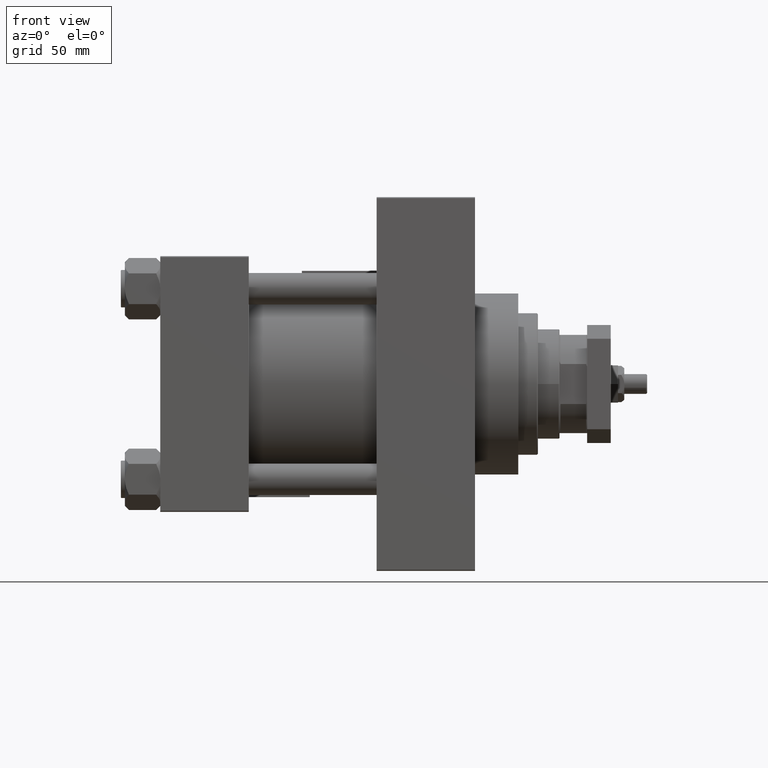
[diagram: clean part render]
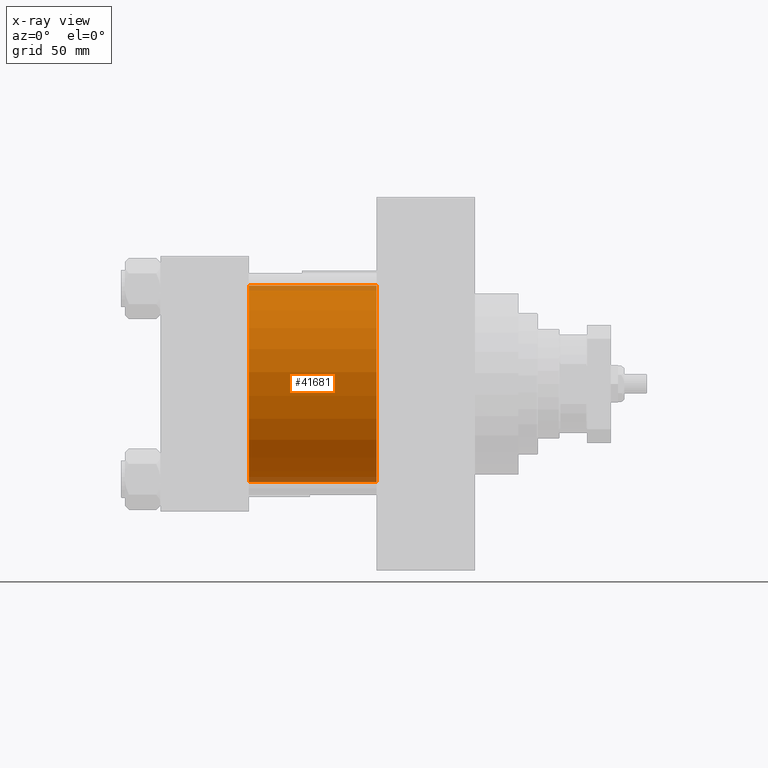
[diagram: x-ray — body ghosted, one internal face saturated and labeled with its STEP entity id]
A machine part, front view, then the same camera in x-ray: the body is ghosted and one INTERNAL B-rep face — a face not visible from any outside direction — is saturated and labeled: STEP entity #41681.
In plain terms, the highlighted cylindrical surface (partial cylindrical patch) has radius 50 mm, axis along (-1, -0, -0).
Its self-contained STEP definition (entity closure, byte-faithful):
#1074 = CARTESIAN_POINT ( 'NONE',  ( 45.00000000000000000, -2.602085213965210642E-15, 50.00000000000000000 ) ) ;
#1263 = ORIENTED_EDGE ( 'NONE', *, *, #14110, .T. ) ;
#3635 = DIRECTION ( 'NONE',  ( 1.000000000000000000, 0.000000000000000000, 0.000000000000000000 ) ) ;
#4664 = FACE_OUTER_BOUND ( 'NONE', #42427, .T. ) ;
#5217 = VERTEX_POINT ( 'NONE', #17005 ) ;
#5256 = ORIENTED_EDGE ( 'NONE', *, *, #15180, .F. ) ;
#5449 = VERTEX_POINT ( 'NONE', #1074 ) ;
#6221 = DIRECTION ( 'NONE',  ( -1.000000000000000000, -0.000000000000000000, -0.000000000000000000 ) ) ;
#6423 = VECTOR ( 'NONE', #32489, 1000.000000000000000 ) ;
#9815 = VERTEX_POINT ( 'NONE', #25591 ) ;
#12006 = VECTOR ( 'NONE', #6221, 1000.000000000000000 ) ;
#13772 = DIRECTION ( 'NONE',  ( 0.000000000000000000, 0.000000000000000000, -1.000000000000000000 ) ) ;
#14110 = EDGE_CURVE ( 'NONE', #9815, #24066, #19762, .T. ) ;
#15180 = EDGE_CURVE ( 'NONE', #5449, #24066, #19371, .T. ) ;
#17005 = CARTESIAN_POINT ( 'NONE',  ( 110.0000000000000000, -2.602085213965210642E-15, 50.00000000000000000 ) ) ;
#18123 = AXIS2_PLACEMENT_3D ( 'NONE', #27983, #3635, #32318 ) ;
#19371 = CIRCLE ( 'NONE', #39313, 50.00000000000000000 ) ;
#19762 = LINE ( 'NONE', #36305, #6423 ) ;
#21691 = CYLINDRICAL_SURFACE ( 'NONE', #46876, 50.00000000000000000 ) ;
#24066 = VERTEX_POINT ( 'NONE', #38141 ) ;
#25591 = CARTESIAN_POINT ( 'NONE',  ( 110.0000000000000000, 3.521148781771555838E-15, -50.00000000000000000 ) ) ;
#26776 = CIRCLE ( 'NONE', #18123, 50.00000000000000000 ) ;
#27983 = CARTESIAN_POINT ( 'NONE',  ( 110.0000000000000000, -2.602085213965210642E-15, 0.000000000000000000 ) ) ;
#28464 = EDGE_CURVE ( 'NONE', #5217, #5449, #34922, .T. ) ;
#29549 = DIRECTION ( 'NONE',  ( -1.000000000000000000, -0.000000000000000000, -0.000000000000000000 ) ) ;
#31085 = EDGE_CURVE ( 'NONE', #5217, #9815, #26776, .T. ) ;
#32318 = DIRECTION ( 'NONE',  ( 0.000000000000000000, 0.000000000000000000, -1.000000000000000000 ) ) ;
#32489 = DIRECTION ( 'NONE',  ( -1.000000000000000000, -0.000000000000000000, -0.000000000000000000 ) ) ;
#34922 = LINE ( 'NONE', #47345, #12006 ) ;
#36305 = CARTESIAN_POINT ( 'NONE',  ( 110.0000000000000000, 3.521148781771555838E-15, -50.00000000000000000 ) ) ;
#38141 = CARTESIAN_POINT ( 'NONE',  ( 45.00000000000000000, 3.521148781771555838E-15, -50.00000000000000000 ) ) ;
#38226 = DIRECTION ( 'NONE',  ( 0.000000000000000000, 0.000000000000000000, 1.000000000000000000 ) ) ;
#39313 = AXIS2_PLACEMENT_3D ( 'NONE', #45736, #41950, #13772 ) ;
#41681 = ADVANCED_FACE ( 'NONE', ( #4664 ), #21691, .F. ) ;
#41950 = DIRECTION ( 'NONE',  ( 1.000000000000000000, 0.000000000000000000, 0.000000000000000000 ) ) ;
#42427 = EDGE_LOOP ( 'NONE', ( #47022, #1263, #5256, #44848 ) ) ;
#44848 = ORIENTED_EDGE ( 'NONE', *, *, #28464, .F. ) ;
#45736 = CARTESIAN_POINT ( 'NONE',  ( 45.00000000000000000, -2.602085213965210642E-15, 0.000000000000000000 ) ) ;
#46876 = AXIS2_PLACEMENT_3D ( 'NONE', #50105, #29549, #38226 ) ;
#47022 = ORIENTED_EDGE ( 'NONE', *, *, #31085, .T. ) ;
#47345 = CARTESIAN_POINT ( 'NONE',  ( 110.0000000000000000, -2.602085213965210642E-15, 50.00000000000000000 ) ) ;
#50105 = CARTESIAN_POINT ( 'NONE',  ( 110.0000000000000000, -2.602085213965210642E-15, 0.000000000000000000 ) ) ;